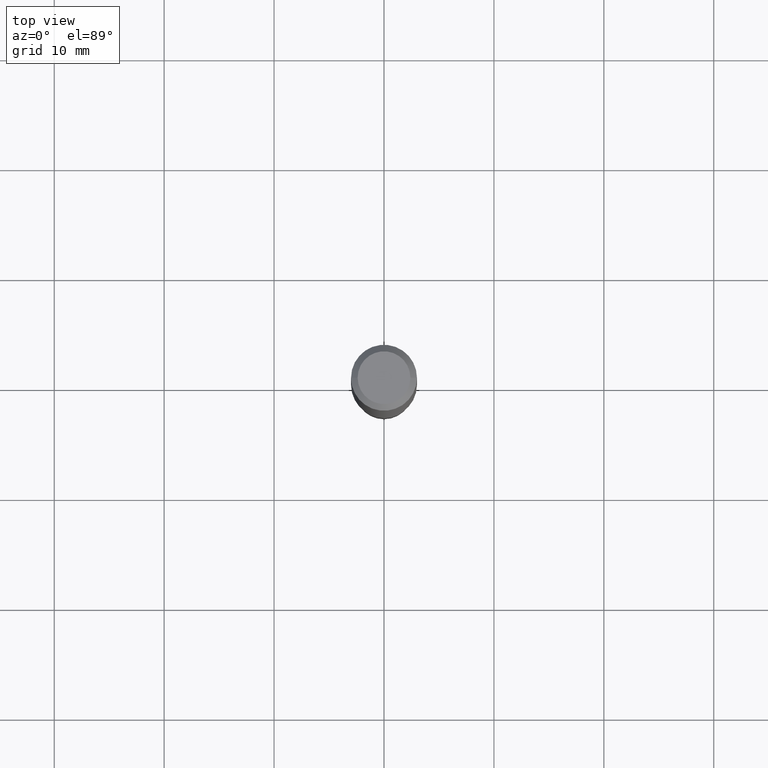
[diagram: clean part render]
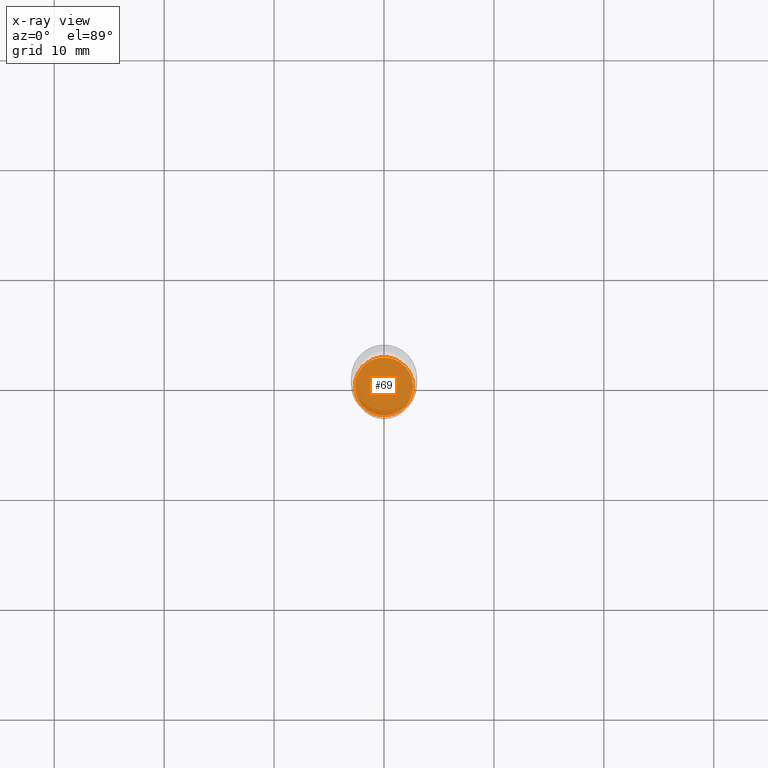
[diagram: x-ray — body ghosted, one internal face saturated and labeled with its STEP entity id]
A machine part, top view, then the same camera in x-ray: the body is ghosted and one INTERNAL B-rep face — a face not visible from any outside direction — is saturated and labeled: STEP entity #69.
In plain terms, the highlighted planar face has unit normal (-0, 0, 1).
Its self-contained STEP definition (entity closure, byte-faithful):
#25 = AXIS2_PLACEMENT_3D ( 'NONE', #449, #451, #104 ) ;
#38 = EDGE_CURVE ( 'NONE', #126, #480, #87, .T. ) ;
#61 = ORIENTED_EDGE ( 'NONE', *, *, #486, .F. ) ;
#69 = ADVANCED_FACE ( 'NONE', ( #292 ), #143, .F. ) ;
#86 = DIRECTION ( 'NONE',  ( -2.445468806185136597E-29, 3.491481338843145583E-15, 1.000000000000000000 ) ) ;
#87 = CIRCLE ( 'NONE', #299, 0.1038499999999999840 ) ;
#104 = DIRECTION ( 'NONE',  ( 1.000000000000000000, -6.982962677686265922E-15, 4.876176775795935793E-29 ) ) ;
#126 = VERTEX_POINT ( 'NONE', #336 ) ;
#138 = CARTESIAN_POINT ( 'NONE',  ( 4.428744008001282238E-29, -6.323072704644935995E-15, -1.810999999999999943 ) ) ;
#143 = PLANE ( 'NONE',  #25 ) ;
#240 = DIRECTION ( 'NONE',  ( 1.000000000000000000, -6.982962677686268288E-15, 0.000000000000000000 ) ) ;
#271 = CARTESIAN_POINT ( 'NONE',  ( 4.428744008001282238E-29, -6.323072704644935995E-15, -1.810999999999999943 ) ) ;
#284 = CIRCLE ( 'NONE', #328, 0.1038499999999999840 ) ;
#286 = ORIENTED_EDGE ( 'NONE', *, *, #38, .F. ) ;
#292 = FACE_OUTER_BOUND ( 'NONE', #342, .T. ) ;
#299 = AXIS2_PLACEMENT_3D ( 'NONE', #138, #371, #488 ) ;
#328 = AXIS2_PLACEMENT_3D ( 'NONE', #271, #86, #240 ) ;
#336 = CARTESIAN_POINT ( 'NONE',  ( -0.1038499999999999840, -5.582524846383961555E-15, -1.810999999999999943 ) ) ;
#342 = EDGE_LOOP ( 'NONE', ( #61, #286 ) ) ;
#364 = CARTESIAN_POINT ( 'NONE',  ( 0.1038499999999999840, -7.048253378722654610E-15, -1.810999999999999943 ) ) ;
#371 = DIRECTION ( 'NONE',  ( -2.445468806185136597E-29, 3.491481338843145583E-15, 1.000000000000000000 ) ) ;
#449 = CARTESIAN_POINT ( 'NONE',  ( 4.428744008001282238E-29, -6.323072704644935995E-15, -1.810999999999999943 ) ) ;
#451 = DIRECTION ( 'NONE',  ( -2.438088387897960049E-29, 3.491481338843145188E-15, 1.000000000000000000 ) ) ;
#480 = VERTEX_POINT ( 'NONE', #364 ) ;
#486 = EDGE_CURVE ( 'NONE', #480, #126, #284, .T. ) ;
#488 = DIRECTION ( 'NONE',  ( 1.000000000000000000, -6.982962677686268288E-15, 0.000000000000000000 ) ) ;